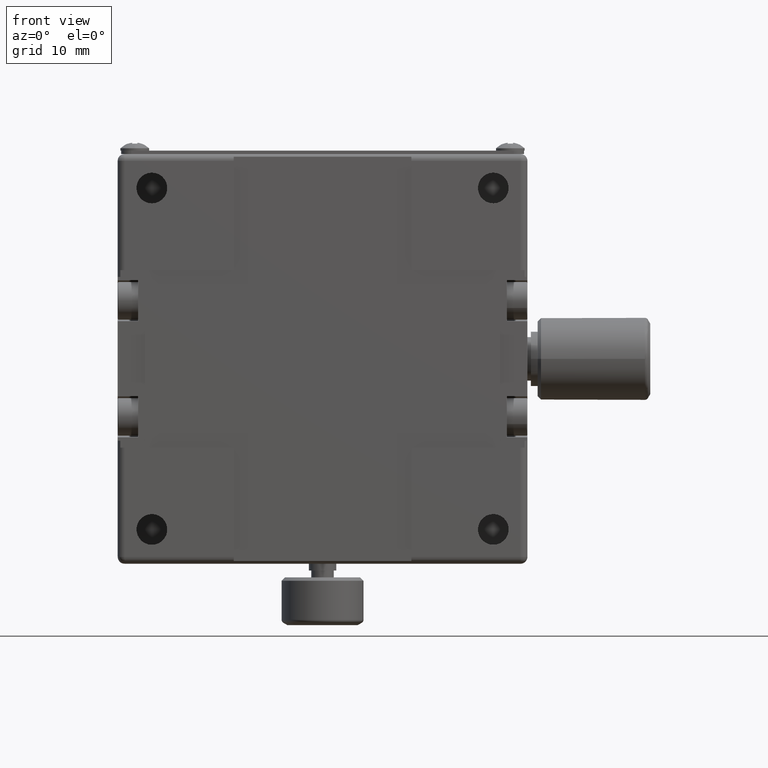
[diagram: clean part render]
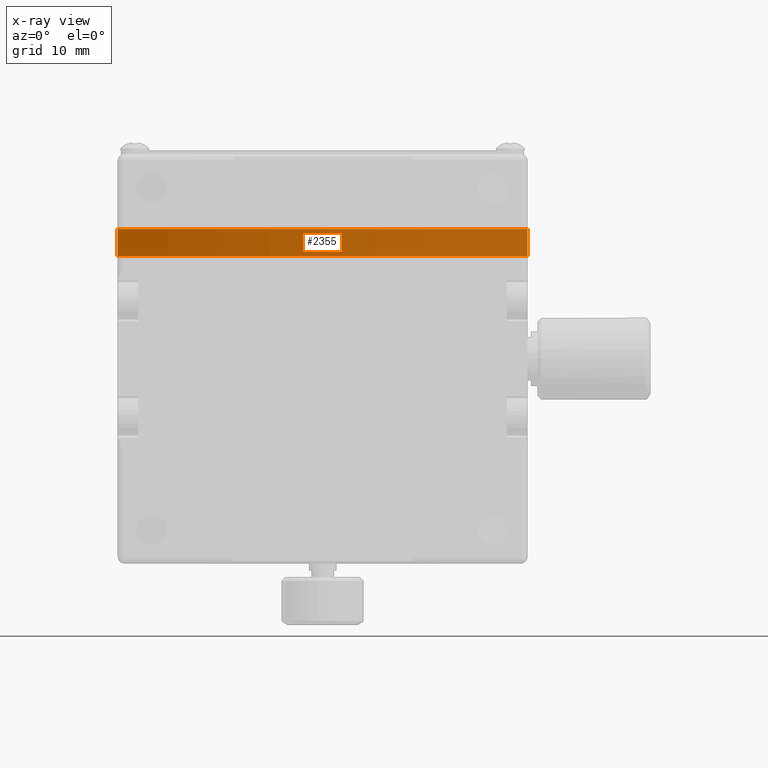
[diagram: x-ray — body ghosted, one internal face saturated and labeled with its STEP entity id]
A machine part, front view, then the same camera in x-ray: the body is ghosted and one INTERNAL B-rep face — a face not visible from any outside direction — is saturated and labeled: STEP entity #2355.
In plain terms, the highlighted cylindrical surface (partial cylindrical patch) has radius 75 mm, axis along (0, 0, -1).
Its self-contained STEP definition (entity closure, byte-faithful):
#355 = EDGE_CURVE ( 'NONE', #30709, #576, #12602, .T. ) ;
#576 = VERTEX_POINT ( 'NONE', #34011 ) ;
#2355 = ADVANCED_FACE ( 'NONE', ( #30766 ), #28162, .F. ) ;
#3026 = VERTEX_POINT ( 'NONE', #30316 ) ;
#3943 = ORIENTED_EDGE ( 'NONE', *, *, #8590, .T. ) ;
#6639 = DIRECTION ( 'NONE',  ( 0.000000000000000000, 0.000000000000000000, 1.000000000000000000 ) ) ;
#8578 = DIRECTION ( 'NONE',  ( 0.000000000000000000, 0.000000000000000000, -1.000000000000000000 ) ) ;
#8590 = EDGE_CURVE ( 'NONE', #18917, #30709, #30376, .T. ) ;
#9780 = VECTOR ( 'NONE', #24324, 1000.000000000000000 ) ;
#10637 = DIRECTION ( 'NONE',  ( 0.000000000000000000, 0.000000000000000000, 1.000000000000000000 ) ) ;
#12386 = ORIENTED_EDGE ( 'NONE', *, *, #21597, .T. ) ;
#12602 = LINE ( 'NONE', #23970, #9780 ) ;
#12794 = EDGE_LOOP ( 'NONE', ( #28378, #3943, #31606, #12386 ) ) ;
#13003 = AXIS2_PLACEMENT_3D ( 'NONE', #21348, #16108, #18549 ) ;
#13701 = AXIS2_PLACEMENT_3D ( 'NONE', #24610, #10637, #33006 ) ;
#14652 = AXIS2_PLACEMENT_3D ( 'NONE', #27976, #8578, #25358 ) ;
#15394 = CIRCLE ( 'NONE', #13003, 75.00000000000000000 ) ;
#15742 = CARTESIAN_POINT ( 'NONE',  ( -29.79705733130390044, -14.13094673901852083, -30.00000000000000000 ) ) ;
#16108 = DIRECTION ( 'NONE',  ( 0.000000000000000000, 0.000000000000000000, -1.000000000000000000 ) ) ;
#18549 = DIRECTION ( 'NONE',  ( -1.000000000000000000, 0.000000000000000000, 0.000000000000000000 ) ) ;
#18917 = VERTEX_POINT ( 'NONE', #29474 ) ;
#20306 = VECTOR ( 'NONE', #6639, 1000.000000000000000 ) ;
#21348 = CARTESIAN_POINT ( 'NONE',  ( 0.2029426686960925097, 54.60768868531910414, 15.00000000107774945 ) ) ;
#21597 = EDGE_CURVE ( 'NONE', #576, #3026, #15394, .T. ) ;
#23364 = CARTESIAN_POINT ( 'NONE',  ( 30.20294266869610311, -14.13094673901852083, 19.00000000000000355 ) ) ;
#23970 = CARTESIAN_POINT ( 'NONE',  ( 30.20294266869610311, -14.13094673901852083, -30.00000000000000000 ) ) ;
#24324 = DIRECTION ( 'NONE',  ( 0.000000000000000000, 0.000000000000000000, -1.000000000000000000 ) ) ;
#24610 = CARTESIAN_POINT ( 'NONE',  ( 0.2029426686960925097, 54.60768868531910414, 19.00000000000000000 ) ) ;
#25358 = DIRECTION ( 'NONE',  ( -1.000000000000000000, 0.000000000000000000, 0.000000000000000000 ) ) ;
#27976 = CARTESIAN_POINT ( 'NONE',  ( 0.2029426686960925097, 54.60768868531910414, -30.00000000000000000 ) ) ;
#28162 = CYLINDRICAL_SURFACE ( 'NONE', #14652, 75.00000000000000000 ) ;
#28378 = ORIENTED_EDGE ( 'NONE', *, *, #29193, .T. ) ;
#29193 = EDGE_CURVE ( 'NONE', #3026, #18917, #29407, .T. ) ;
#29407 = LINE ( 'NONE', #15742, #20306 ) ;
#29474 = CARTESIAN_POINT ( 'NONE',  ( -29.79705733130390044, -14.13094673901852083, 19.00000000000000355 ) ) ;
#30316 = CARTESIAN_POINT ( 'NONE',  ( -29.79705733130390044, -14.13094673901852083, 15.00000000107774945 ) ) ;
#30376 = CIRCLE ( 'NONE', #13701, 75.00000000000000000 ) ;
#30709 = VERTEX_POINT ( 'NONE', #23364 ) ;
#30766 = FACE_OUTER_BOUND ( 'NONE', #12794, .T. ) ;
#31606 = ORIENTED_EDGE ( 'NONE', *, *, #355, .T. ) ;
#33006 = DIRECTION ( 'NONE',  ( 1.000000000000000000, 0.000000000000000000, 0.000000000000000000 ) ) ;
#34011 = CARTESIAN_POINT ( 'NONE',  ( 30.20294266869610311, -14.13094673901852083, 15.00000000107774945 ) ) ;